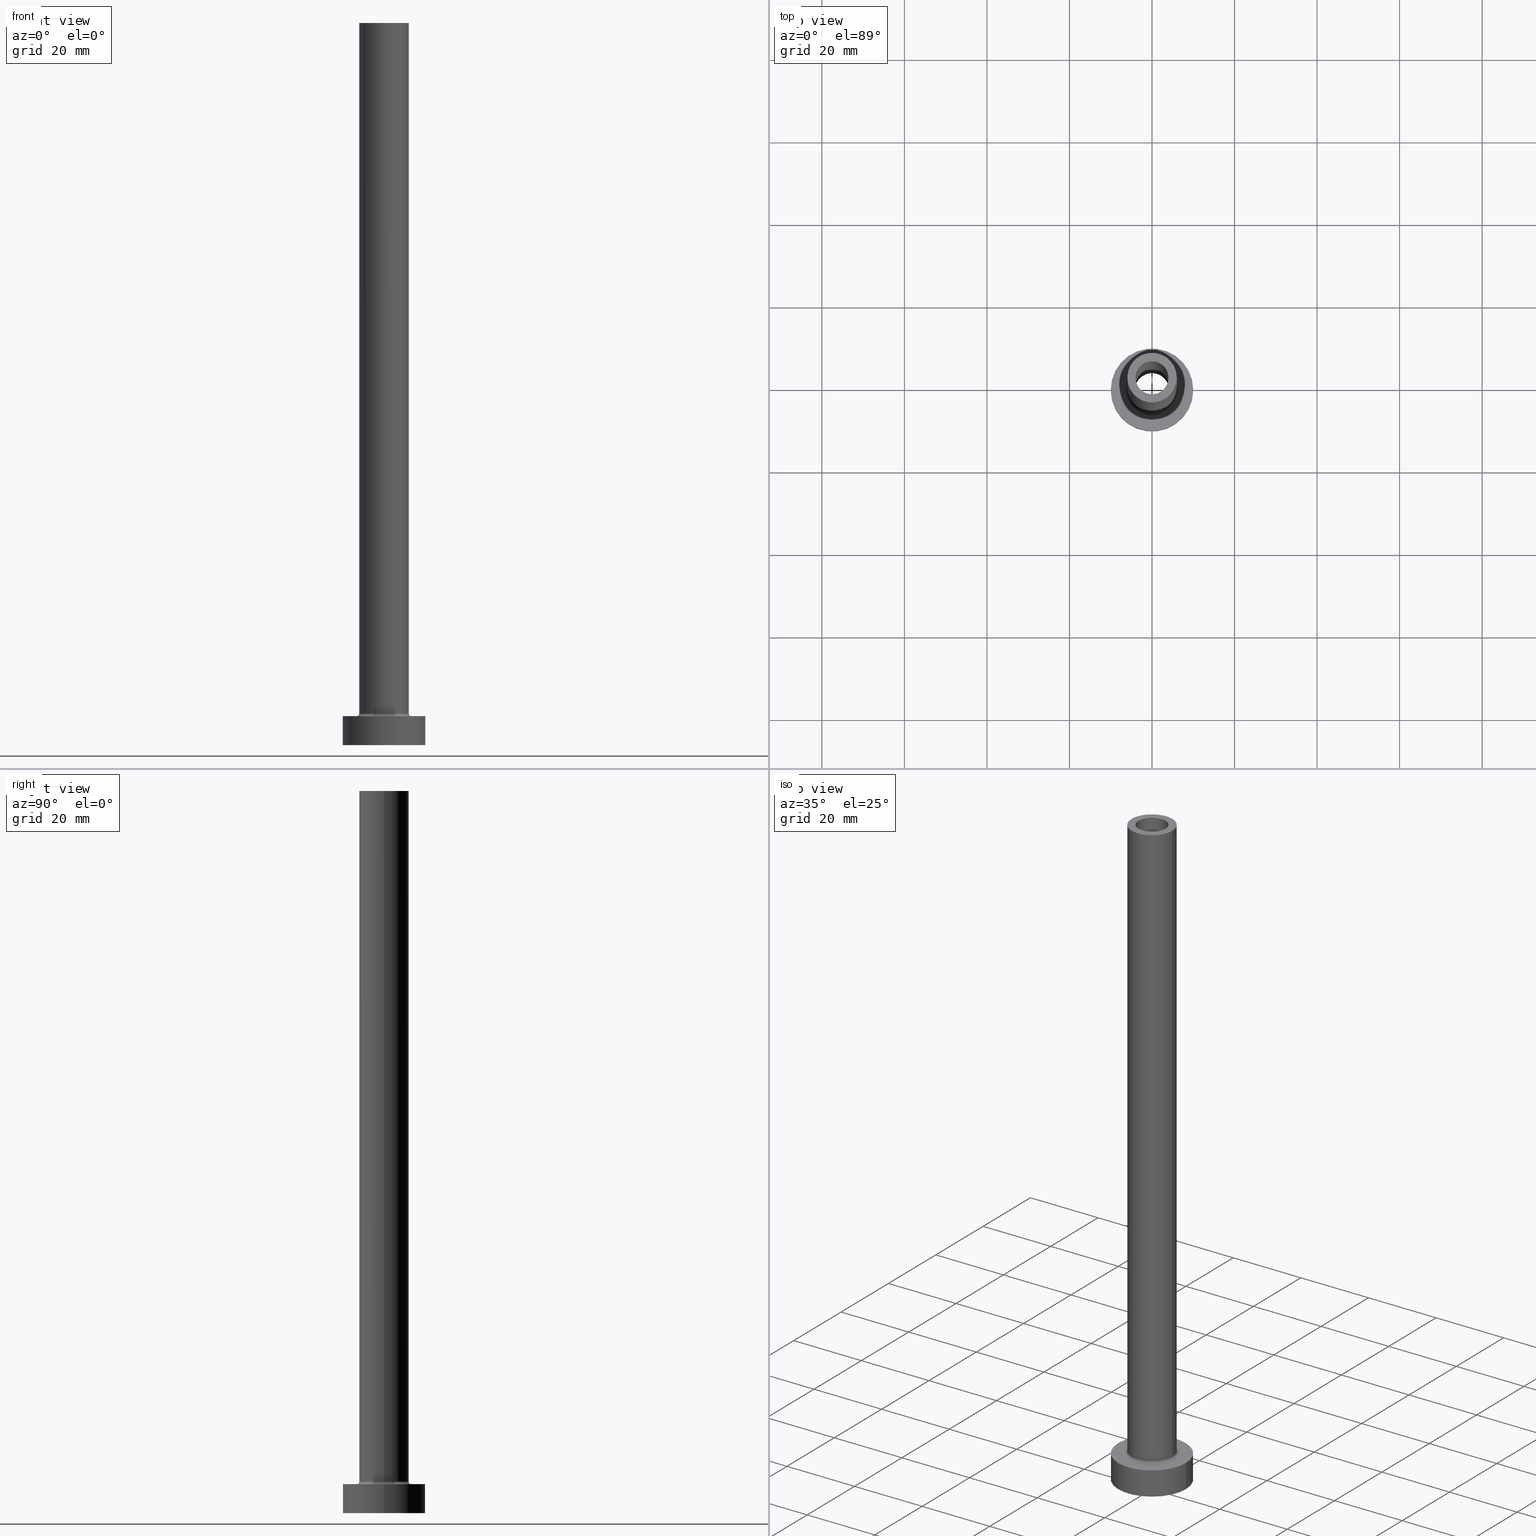
[diagram: canonical four-view strip — front | top / right | iso, engineering-drawing reading convention]
A machine part, canonical four-view strip (front | top / right | iso — engineering-drawing reading convention). The complete STEP part file that produces these views, byte-faithful:
ISO-10303-21;
HEADER;
FILE_DESCRIPTION (( 'STEP AP203' ),
    '1' );
FILE_NAME ('8c1c.STEP',
    '2023-02-13T12:46:08',
    ( '' ),
    ( '' ),
    'SwSTEP 2.0',
    'SolidWorks 2019',
    '' );
FILE_SCHEMA (( 'CONFIG_CONTROL_DESIGN' ));
ENDSEC;

DATA;
#1 = ADVANCED_FACE ( 'NONE', ( #435 ), #109, .F. ) ;
#2 = DIRECTION ( 'NONE',  ( 0.000000000000000000, 0.000000000000000000, 1.000000000000000000 ) ) ;
#3 =( LENGTH_UNIT ( ) NAMED_UNIT ( * ) SI_UNIT ( .MILLI., .METRE. ) );
#4 = EDGE_CURVE ( 'NONE', #327, #97, #182, .T. ) ;
#5 = ORIENTED_EDGE ( 'NONE', *, *, #440, .T. ) ;
#6 = VECTOR ( 'NONE', #369, 1000.000000000000000 ) ;
#7 = CIRCLE ( 'NONE', #333, 0.7000000000000000666 ) ;
#8 = DIRECTION ( 'NONE',  ( 1.000000000000000000, 0.000000000000000000, -0.000000000000000000 ) ) ;
#9 = VERTEX_POINT ( 'NONE', #152 ) ;
#10 = AXIS2_PLACEMENT_3D ( 'NONE', #14, #183, #8 ) ;
#11 = CARTESIAN_POINT ( 'NONE',  ( 6.000000000000000888, 7.347880794884119736E-16, 175.0000000000000284 ) ) ;
#12 = DIRECTION ( 'NONE',  ( 1.000000000000000000, 0.000000000000000000, 0.000000000000000000 ) ) ;
#13 = DIRECTION ( 'NONE',  ( 1.000000000000000000, 0.000000000000000000, 0.000000000000000000 ) ) ;
#14 = CARTESIAN_POINT ( 'NONE',  ( 0.000000000000000000, 0.000000000000000000, 130.0000000000000000 ) ) ;
#15 = EDGE_LOOP ( 'NONE', ( #162, #293, #197, #358 ) ) ;
#16 = LINE ( 'NONE', #305, #360 ) ;
#17 = CARTESIAN_POINT ( 'NONE',  ( 0.000000000000000000, 0.000000000000000000, 0.000000000000000000 ) ) ;
#18 = AXIS2_PLACEMENT_3D ( 'NONE', #408, #298, #370 ) ;
#19 = DIRECTION ( 'NONE',  ( 0.000000000000000000, -1.000000000000000000, 0.000000000000000000 ) ) ;
#20 = AXIS2_PLACEMENT_3D ( 'NONE', #142, #222, #297 ) ;
#21 = VERTEX_POINT ( 'NONE', #35 ) ;
#22 = ORIENTED_EDGE ( 'NONE', *, *, #291, .T. ) ;
#23 = CARTESIAN_POINT ( 'NONE',  ( 4.150000000000000355, 5.082284216461514170E-16, 0.000000000000000000 ) ) ;
#24 = PLANE ( 'NONE',  #82 ) ;
#25 = DIRECTION ( 'NONE',  ( -1.000000000000000000, 0.000000000000000000, 0.000000000000000000 ) ) ;
#26 = CC_DESIGN_SECURITY_CLASSIFICATION ( #214, ( #221 ) ) ;
#27 = COORDINATED_UNIVERSAL_TIME_OFFSET ( 1, 0, .AHEAD. ) ;
#28 = COORDINATED_UNIVERSAL_TIME_OFFSET ( 1, 0, .AHEAD. ) ;
#29 = EDGE_CURVE ( 'NONE', #204, #327, #374, .T. ) ;
#30 = UNCERTAINTY_MEASURE_WITH_UNIT (LENGTH_MEASURE( 1.000000000000000082E-05 ), #3, 'distance_accuracy_value', 'NONE');
#31 = CYLINDRICAL_SURFACE ( 'NONE', #361, 6.000000000000000888 ) ;
#32 = APPROVAL_PERSON_ORGANIZATION ( #376, #207, #164 ) ;
#33 = EDGE_LOOP ( 'NONE', ( #279, #129 ) ) ;
#34 = DIRECTION ( 'NONE',  ( -1.000000000000000000, 0.000000000000000000, 0.000000000000000000 ) ) ;
#35 = CARTESIAN_POINT ( 'NONE',  ( -4.150000000000000355, 0.000000000000000000, 0.000000000000000000 ) ) ;
#36 = ORIENTED_EDGE ( 'NONE', *, *, #335, .T. ) ;
#37 = DIRECTION ( 'NONE',  ( 0.000000000000000000, 0.000000000000000000, 1.000000000000000000 ) ) ;
#38 = CARTESIAN_POINT ( 'NONE',  ( 0.000000000000000000, 0.000000000000000000, 7.000000000000000000 ) ) ;
#39 = EDGE_CURVE ( 'NONE', #127, #151, #7, .T. ) ;
#40 = CYLINDRICAL_SURFACE ( 'NONE', #323, 10.00000000000000000 ) ;
#41 = DIRECTION ( 'NONE',  ( 0.000000000000000000, 0.000000000000000000, 1.000000000000000000 ) ) ;
#42 = CIRCLE ( 'NONE', #289, 10.00000000000000000 ) ;
#43 = EDGE_LOOP ( 'NONE', ( #252, #175, #381, #58 ) ) ;
#44 = ORIENTED_EDGE ( 'NONE', *, *, #404, .F. ) ;
#45 = EDGE_CURVE ( 'NONE', #21, #243, #126, .T. ) ;
#46 = DIRECTION ( 'NONE',  ( 0.000000000000000000, 0.000000000000000000, 1.000000000000000000 ) ) ;
#47 = AXIS2_PLACEMENT_3D ( 'NONE', #192, #446, #125 ) ;
#48 = DIRECTION ( 'NONE',  ( 1.000000000000000000, 0.000000000000000000, 0.000000000000000000 ) ) ;
#49 = CARTESIAN_POINT ( 'NONE',  ( -4.150000000000000355, 0.000000000000000000, 141.7379725676967155 ) ) ;
#50 = CARTESIAN_POINT ( 'NONE',  ( 6.000000000000000888, 7.347880794884119736E-16, 175.0000000000000284 ) ) ;
#51 = VERTEX_POINT ( 'NONE', #185 ) ;
#52 = EDGE_CURVE ( 'NONE', #348, #226, #326, .T. ) ;
#53 = CARTESIAN_POINT ( 'NONE',  ( 0.000000000000000000, 0.000000000000000000, 175.0000000000000284 ) ) ;
#54 = DIRECTION ( 'NONE',  ( 1.000000000000000000, 0.000000000000000000, 0.000000000000000000 ) ) ;
#55 = COORDINATED_UNIVERSAL_TIME_OFFSET ( 1, 0, .AHEAD. ) ;
#56 = ORGANIZATION ( 'NEUR�EN�', 'NEUR�EN�', '' ) ;
#57 = CARTESIAN_POINT ( 'NONE',  ( 0.000000000000000000, 0.000000000000000000, 175.0000000000000284 ) ) ;
#58 = ORIENTED_EDGE ( 'NONE', *, *, #291, .F. ) ;
#59 = APPLICATION_PROTOCOL_DEFINITION ( 'international standard', 'config_control_design', 1994, #447 ) ;
#60 = ORIENTED_EDGE ( 'NONE', *, *, #68, .F. ) ;
#61 = PERSON_AND_ORGANIZATION ( #277, #56 ) ;
#62 = EDGE_LOOP ( 'NONE', ( #439, #5 ) ) ;
#63 = ORIENTED_EDGE ( 'NONE', *, *, #355, .F. ) ;
#64 = DIRECTION ( 'NONE',  ( 0.000000000000000000, 0.000000000000000000, -1.000000000000000000 ) ) ;
#65 = CIRCLE ( 'NONE', #372, 6.000000000000000888 ) ;
#66 = DATE_AND_TIME ( #276, #133 ) ;
#67 = ORIENTED_EDGE ( 'NONE', *, *, #171, .T. ) ;
#68 = EDGE_CURVE ( 'NONE', #127, #51, #385, .T. ) ;
#69 = PERSON_AND_ORGANIZATION_ROLE ( 'creator' ) ;
#70 = CIRCLE ( 'NONE', #397, 6.000000000000000888 ) ;
#71 = LOCAL_TIME ( 13, 46, 8.000000000000000000, #27 ) ;
#72 = DIRECTION ( 'NONE',  ( 0.000000000000000000, 0.000000000000000000, 1.000000000000000000 ) ) ;
#73 = CIRCLE ( 'NONE', #362, 4.000000000000000000 ) ;
#74 = DIRECTION ( 'NONE',  ( 1.000000000000000000, 0.000000000000000000, 0.000000000000000000 ) ) ;
#75 = ADVANCED_FACE ( 'NONE', ( #102, #394 ), #24, .T. ) ;
#76 = ORIENTED_EDGE ( 'NONE', *, *, #440, .F. ) ;
#77 = EDGE_LOOP ( 'NONE', ( #60, #401, #349, #96 ) ) ;
#78 = DIRECTION ( 'NONE',  ( 1.000000000000000000, 0.000000000000000000, 0.000000000000000000 ) ) ;
#79 = EDGE_LOOP ( 'NONE', ( #220, #444, #216, #146 ) ) ;
#80 = TOROIDAL_SURFACE ( 'NONE', #47, 6.700000000000001066, 0.6999999999999999556 ) ;
#81 = DIRECTION ( 'NONE',  ( 1.000000000000000000, 0.000000000000000000, 0.000000000000000000 ) ) ;
#82 = AXIS2_PLACEMENT_3D ( 'NONE', #168, #320, #314 ) ;
#83 = CC_DESIGN_DATE_AND_TIME_ASSIGNMENT ( #106, #454, ( #214 ) ) ;
#84 = ORIENTED_EDGE ( 'NONE', *, *, #52, .F. ) ;
#85 = ORIENTED_EDGE ( 'NONE', *, *, #39, .F. ) ;
#86 = CARTESIAN_POINT ( 'NONE',  ( 4.150000000000000355, 5.082284216461514170E-16, 141.7379725676967155 ) ) ;
#87 = LINE ( 'NONE', #91, #122 ) ;
#88 = EDGE_CURVE ( 'NONE', #327, #204, #73, .T. ) ;
#89 = AXIS2_PLACEMENT_3D ( 'NONE', #149, #46, #159 ) ;
#90 = FACE_OUTER_BOUND ( 'NONE', #173, .T. ) ;
#91 = CARTESIAN_POINT ( 'NONE',  ( -10.00000000000000000, 0.000000000000000000, 7.000000000000000000 ) ) ;
#92 = PERSON_AND_ORGANIZATION ( #277, #56 ) ;
#93 = CARTESIAN_POINT ( 'NONE',  ( 10.00000000000000000, 1.224646799147353256E-15, 7.000000000000000000 ) ) ;
#94 = EDGE_LOOP ( 'NONE', ( #433, #441 ) ) ;
#95 = COORDINATED_UNIVERSAL_TIME_OFFSET ( 1, 0, .AHEAD. ) ;
#96 = ORIENTED_EDGE ( 'NONE', *, *, #212, .F. ) ;
#97 = VERTEX_POINT ( 'NONE', #352 ) ;
#98 = AXIS2_PLACEMENT_3D ( 'NONE', #393, #318, #136 ) ;
#99 = CC_DESIGN_APPROVAL ( #207, ( #221 ) ) ;
#100 = ORIENTED_EDGE ( 'NONE', *, *, #128, .F. ) ;
#101 = CARTESIAN_POINT ( 'NONE',  ( 0.000000000000000000, 0.000000000000000000, 175.0000000000000284 ) ) ;
#102 = FACE_BOUND ( 'NONE', #202, .T. ) ;
#103 = ADVANCED_FACE ( 'NONE', ( #134 ), #280, .T. ) ;
#104 = VECTOR ( 'NONE', #375, 1000.000000000000000 ) ;
#105 = DIRECTION ( 'NONE',  ( -0.000000000000000000, -0.000000000000000000, -1.000000000000000000 ) ) ;
#106 = DATE_AND_TIME ( #315, #71 ) ;
#107 = EDGE_LOOP ( 'NONE', ( #167, #351 ) ) ;
#108 = APPROVAL_DATE_TIME ( #66, #207 ) ;
#109 = CYLINDRICAL_SURFACE ( 'NONE', #223, 4.150000000000000355 ) ;
#110 = EDGE_LOOP ( 'NONE', ( #270, #63 ) ) ;
#111 = CIRCLE ( 'NONE', #89, 10.00000000000000000 ) ;
#112 =( NAMED_UNIT ( * ) SI_UNIT ( $, .STERADIAN. ) SOLID_ANGLE_UNIT ( ) );
#113 = ADVANCED_FACE ( 'NONE', ( #172 ), #356, .F. ) ;
#114 = DIRECTION ( 'NONE',  ( 1.000000000000000000, 0.000000000000000000, 0.000000000000000000 ) ) ;
#115 = EDGE_CURVE ( 'NONE', #9, #151, #460, .T. ) ;
#116 = DIRECTION ( 'NONE',  ( 0.000000000000000000, 0.000000000000000000, -1.000000000000000000 ) ) ;
#117 = TOROIDAL_SURFACE ( 'NONE', #330, 6.700000000000001066, 0.6999999999999999556 ) ;
#118 = DIRECTION ( 'NONE',  ( 1.000000000000000000, 0.000000000000000000, -0.000000000000000000 ) ) ;
#119 = CARTESIAN_POINT ( 'NONE',  ( -4.000000000000000000, 0.000000000000000000, 130.0000000000000000 ) ) ;
#120 = APPROVAL_ROLE ( '' ) ;
#121 = ADVANCED_FACE ( 'NONE', ( #364 ), #40, .T. ) ;
#122 = VECTOR ( 'NONE', #229, 1000.000000000000000 ) ;
#123 = CARTESIAN_POINT ( 'NONE',  ( 0.000000000000000000, 0.000000000000000000, 0.000000000000000000 ) ) ;
#124 = ORIENTED_EDGE ( 'NONE', *, *, #68, .T. ) ;
#125 = DIRECTION ( 'NONE',  ( 1.000000000000000000, 0.000000000000000000, 0.000000000000000000 ) ) ;
#126 = CIRCLE ( 'NONE', #253, 4.150000000000000355 ) ;
#127 = VERTEX_POINT ( 'NONE', #329 ) ;
#128 = EDGE_CURVE ( 'NONE', #204, #402, #16, .T. ) ;
#129 = ORIENTED_EDGE ( 'NONE', *, *, #157, .T. ) ;
#130 = ORIENTED_EDGE ( 'NONE', *, *, #328, .F. ) ;
#131 = COORDINATED_UNIVERSAL_TIME_OFFSET ( 1, 0, .AHEAD. ) ;
#132 = ORIENTED_EDGE ( 'NONE', *, *, #312, .F. ) ;
#133 = LOCAL_TIME ( 13, 46, 8.000000000000000000, #131 ) ;
#134 = FACE_OUTER_BOUND ( 'NONE', #245, .T. ) ;
#135 = FACE_OUTER_BOUND ( 'NONE', #418, .T. ) ;
#136 = DIRECTION ( 'NONE',  ( -1.000000000000000000, 0.000000000000000000, 0.000000000000000000 ) ) ;
#137 = CARTESIAN_POINT ( 'NONE',  ( 4.150000000000000355, 5.082284216461514170E-16, 130.0000000000000000 ) ) ;
#138 = AXIS2_PLACEMENT_3D ( 'NONE', #57, #380, #196 ) ;
#139 = PERSON_AND_ORGANIZATION_ROLE ( 'design_supplier' ) ;
#140 = VERTEX_POINT ( 'NONE', #11 ) ;
#141 = ADVANCED_FACE ( 'NONE', ( #419 ), #184, .T. ) ;
#142 = CARTESIAN_POINT ( 'NONE',  ( 0.000000000000000000, 0.000000000000000000, 7.000000000000000000 ) ) ;
#143 =( NAMED_UNIT ( * ) PLANE_ANGLE_UNIT ( ) SI_UNIT ( $, .RADIAN. ) );
#144 = VECTOR ( 'NONE', #371, 1000.000000000000000 ) ;
#145 = AXIS2_PLACEMENT_3D ( 'NONE', #190, #236, #273 ) ;
#146 = ORIENTED_EDGE ( 'NONE', *, *, #180, .F. ) ;
#147 = ORIENTED_EDGE ( 'NONE', *, *, #115, .T. ) ;
#148 = CC_DESIGN_PERSON_AND_ORGANIZATION_ASSIGNMENT ( #429, #69, ( #221 ) ) ;
#149 = CARTESIAN_POINT ( 'NONE',  ( 0.000000000000000000, 0.000000000000000000, 7.000000000000000000 ) ) ;
#150 = DIRECTION ( 'NONE',  ( 0.000000000000000000, 0.000000000000000000, -1.000000000000000000 ) ) ;
#151 = VERTEX_POINT ( 'NONE', #299 ) ;
#152 = CARTESIAN_POINT ( 'NONE',  ( 6.700000000000001066, 0.000000000000000000, 7.000000000000006217 ) ) ;
#153 = FACE_BOUND ( 'NONE', #94, .T. ) ;
#154 = MECHANICAL_CONTEXT ( 'NONE', #203, 'mechanical' ) ;
#155 = CARTESIAN_POINT ( 'NONE',  ( 0.000000000000000000, 0.000000000000000000, 7.700000000000012612 ) ) ;
#156 = DIRECTION ( 'NONE',  ( -0.000000000000000000, -0.000000000000000000, -1.000000000000000000 ) ) ;
#157 = EDGE_CURVE ( 'NONE', #140, #288, #70, .T. ) ;
#158 = DIRECTION ( 'NONE',  ( 0.000000000000000000, 0.000000000000000000, 1.000000000000000000 ) ) ;
#159 = DIRECTION ( 'NONE',  ( 1.000000000000000000, 0.000000000000000000, 0.000000000000000000 ) ) ;
#160 = CARTESIAN_POINT ( 'NONE',  ( 0.000000000000000000, 0.000000000000000000, 141.7379725676967155 ) ) ;
#161 = AXIS2_PLACEMENT_3D ( 'NONE', #17, #158, #237 ) ;
#162 = ORIENTED_EDGE ( 'NONE', *, *, #432, .F. ) ;
#163 = LINE ( 'NONE', #49, #144 ) ;
#164 = APPROVAL_ROLE ( '' ) ;
#165 = EDGE_CURVE ( 'NONE', #243, #21, #413, .T. ) ;
#166 = PERSON_AND_ORGANIZATION_ROLE ( 'creator' ) ;
#167 = ORIENTED_EDGE ( 'NONE', *, *, #29, .F. ) ;
#168 = CARTESIAN_POINT ( 'NONE',  ( 0.000000000000000000, 0.000000000000000000, 7.000000000000000000 ) ) ;
#169 = SECURITY_CLASSIFICATION_LEVEL ( 'unclassified' ) ;
#170 = CIRCLE ( 'NONE', #257, 4.000000000000000000 ) ;
#171 = EDGE_CURVE ( 'NONE', #226, #274, #87, .T. ) ;
#172 = FACE_OUTER_BOUND ( 'NONE', #272, .T. ) ;
#173 = EDGE_LOOP ( 'NONE', ( #322, #132 ) ) ;
#174 = DATE_AND_TIME ( #395, #250 ) ;
#175 = ORIENTED_EDGE ( 'NONE', *, *, #328, .T. ) ;
#176 = CIRCLE ( 'NONE', #266, 4.150000000000000355 ) ;
#177 = DESIGN_CONTEXT ( 'detailed design', #447, 'design' ) ;
#178 = DIRECTION ( 'NONE',  ( 0.000000000000000000, 0.000000000000000000, 1.000000000000000000 ) ) ;
#179 =( GEOMETRIC_REPRESENTATION_CONTEXT ( 3 ) GLOBAL_UNCERTAINTY_ASSIGNED_CONTEXT ( ( #30 ) ) GLOBAL_UNIT_ASSIGNED_CONTEXT ( ( #3, #143, #112 ) ) REPRESENTATION_CONTEXT ( 'NONE', 'WORKASPACE' ) );
#180 = EDGE_CURVE ( 'NONE', #379, #21, #163, .T. ) ;
#181 = DIRECTION ( 'NONE',  ( -0.000000000000000000, -0.000000000000000000, -1.000000000000000000 ) ) ;
#182 = LINE ( 'NONE', #396, #251 ) ;
#183 = DIRECTION ( 'NONE',  ( 0.000000000000000000, 0.000000000000000000, 1.000000000000000000 ) ) ;
#184 = CYLINDRICAL_SURFACE ( 'NONE', #451, 10.00000000000000000 ) ;
#185 = CARTESIAN_POINT ( 'NONE',  ( 6.000000000000000888, 7.347880794884119736E-16, 7.700000000000012612 ) ) ;
#186 = APPROVAL_PERSON_ORGANIZATION ( #359, #383, #357 ) ;
#187 = DIRECTION ( 'NONE',  ( 0.000000000000000000, 0.000000000000000000, 1.000000000000000000 ) ) ;
#188 = CC_DESIGN_PERSON_AND_ORGANIZATION_ASSIGNMENT ( #427, #211, ( #214 ) ) ;
#189 = AXIS2_PLACEMENT_3D ( 'NONE', #101, #244, #25 ) ;
#190 = CARTESIAN_POINT ( 'NONE',  ( 0.000000000000000000, 0.000000000000000000, 130.0000000000000000 ) ) ;
#191 = FACE_BOUND ( 'NONE', #62, .T. ) ;
#192 = CARTESIAN_POINT ( 'NONE',  ( 0.000000000000000000, 0.000000000000000000, 7.700000000000012612 ) ) ;
#193 = DIRECTION ( 'NONE',  ( -1.000000000000000000, 0.000000000000000000, 0.000000000000000000 ) ) ;
#194 = EDGE_CURVE ( 'NONE', #379, #234, #353, .T. ) ;
#195 = AXIS2_PLACEMENT_3D ( 'NONE', #436, #377, #118 ) ;
#196 = DIRECTION ( 'NONE',  ( -1.000000000000000000, 0.000000000000000000, 0.000000000000000000 ) ) ;
#197 = ORIENTED_EDGE ( 'NONE', *, *, #180, .T. ) ;
#198 = ORIENTED_EDGE ( 'NONE', *, *, #411, .T. ) ;
#199 = PERSON_AND_ORGANIZATION ( #277, #56 ) ;
#200 = ORIENTED_EDGE ( 'NONE', *, *, #365, .T. ) ;
#201 = CYLINDRICAL_SURFACE ( 'NONE', #138, 4.000000000000000000 ) ;
#202 = EDGE_LOOP ( 'NONE', ( #147, #384 ) ) ;
#203 = APPLICATION_CONTEXT ( 'configuration controlled 3d designs of mechanical parts and assemblies' ) ;
#204 = VERTEX_POINT ( 'NONE', #443 ) ;
#205 = DIRECTION ( 'NONE',  ( 0.000000000000000000, 0.000000000000000000, 1.000000000000000000 ) ) ;
#206 = AXIS2_PLACEMENT_3D ( 'NONE', #337, #261, #54 ) ;
#207 = APPROVAL ( #311, 'NEUR�EN�' ) ;
#208 = AXIS2_PLACEMENT_3D ( 'NONE', #334, #41, #258 ) ;
#209 = CARTESIAN_POINT ( 'NONE',  ( 0.000000000000000000, 0.000000000000000000, 175.0000000000000284 ) ) ;
#210 = CARTESIAN_POINT ( 'NONE',  ( 0.000000000000000000, 0.000000000000000000, 7.000000000000000000 ) ) ;
#211 = PERSON_AND_ORGANIZATION_ROLE ( 'classification_officer' ) ;
#212 = EDGE_CURVE ( 'NONE', #51, #9, #453, .T. ) ;
#213 = CARTESIAN_POINT ( 'NONE',  ( 0.000000000000000000, 0.000000000000000000, 175.0000000000000284 ) ) ;
#214 = SECURITY_CLASSIFICATION ( '', '', #169 ) ;
#215 = DIRECTION ( 'NONE',  ( -1.000000000000000000, 0.000000000000000000, 0.000000000000000000 ) ) ;
#216 = ORIENTED_EDGE ( 'NONE', *, *, #165, .T. ) ;
#217 = ADVANCED_FACE ( 'NONE', ( #265 ), #80, .F. ) ;
#218 = DIRECTION ( 'NONE',  ( -0.000000000000000000, -0.000000000000000000, -1.000000000000000000 ) ) ;
#219 = DIRECTION ( 'NONE',  ( -1.000000000000000000, 0.000000000000000000, 0.000000000000000000 ) ) ;
#220 = ORIENTED_EDGE ( 'NONE', *, *, #194, .T. ) ;
#221 = PRODUCT_DEFINITION_FORMATION_WITH_SPECIFIED_SOURCE ( 'LIBOVOLN�', '', #426, .NOT_KNOWN. ) ;
#222 = DIRECTION ( 'NONE',  ( 0.000000000000000000, 0.000000000000000000, 1.000000000000000000 ) ) ;
#223 = AXIS2_PLACEMENT_3D ( 'NONE', #332, #116, #215 ) ;
#224 = DIRECTION ( 'NONE',  ( 0.000000000000000000, 0.000000000000000000, 1.000000000000000000 ) ) ;
#225 = LINE ( 'NONE', #50, #405 ) ;
#226 = VERTEX_POINT ( 'NONE', #414 ) ;
#227 = ADVANCED_FACE ( 'NONE', ( #271 ), #343, .F. ) ;
#228 = CARTESIAN_POINT ( 'NONE',  ( 0.000000000000000000, 0.000000000000000000, 130.0000000000000000 ) ) ;
#229 = DIRECTION ( 'NONE',  ( -0.000000000000000000, -0.000000000000000000, -1.000000000000000000 ) ) ;
#230 = CALENDAR_DATE ( 2023, 13, 2 ) ;
#231 = CC_DESIGN_APPROVAL ( #383, ( #214 ) ) ;
#232 = CARTESIAN_POINT ( 'NONE',  ( 0.000000000000000000, 0.000000000000000000, 130.0000000000000000 ) ) ;
#233 = APPROVAL_DATE_TIME ( #373, #281 ) ;
#234 = VERTEX_POINT ( 'NONE', #137 ) ;
#235 = CC_DESIGN_PERSON_AND_ORGANIZATION_ASSIGNMENT ( #267, #416, ( #426 ) ) ;
#236 = DIRECTION ( 'NONE',  ( 0.000000000000000000, 0.000000000000000000, 1.000000000000000000 ) ) ;
#237 = DIRECTION ( 'NONE',  ( 1.000000000000000000, 0.000000000000000000, 0.000000000000000000 ) ) ;
#238 = ORIENTED_EDGE ( 'NONE', *, *, #88, .T. ) ;
#239 = APPROVAL_PERSON_ORGANIZATION ( #92, #281, #120 ) ;
#240 = PLANE ( 'NONE',  #345 ) ;
#241 = APPLICATION_PROTOCOL_DEFINITION ( 'international standard', 'config_control_design', 1994, #203 ) ;
#242 = ADVANCED_FACE ( 'NONE', ( #313 ), #201, .F. ) ;
#243 = VERTEX_POINT ( 'NONE', #23 ) ;
#244 = DIRECTION ( 'NONE',  ( -0.000000000000000000, -0.000000000000000000, -1.000000000000000000 ) ) ;
#245 = EDGE_LOOP ( 'NONE', ( #130, #430, #22, #124 ) ) ;
#246 = FACE_OUTER_BOUND ( 'NONE', #43, .T. ) ;
#247 = CARTESIAN_POINT ( 'NONE',  ( 0.000000000000000000, 0.000000000000000000, 0.000000000000000000 ) ) ;
#248 = CC_DESIGN_DATE_AND_TIME_ASSIGNMENT ( #341, #302, ( #363 ) ) ;
#249 = CARTESIAN_POINT ( 'NONE',  ( 0.000000000000000000, 0.000000000000000000, 7.700000000000012612 ) ) ;
#250 = LOCAL_TIME ( 13, 46, 8.000000000000000000, #28 ) ;
#251 = VECTOR ( 'NONE', #431, 1000.000000000000000 ) ;
#252 = ORIENTED_EDGE ( 'NONE', *, *, #157, .F. ) ;
#253 = AXIS2_PLACEMENT_3D ( 'NONE', #407, #218, #114 ) ;
#254 = DIRECTION ( 'NONE',  ( -0.000000000000000000, -0.000000000000000000, -1.000000000000000000 ) ) ;
#255 = CARTESIAN_POINT ( 'NONE',  ( 4.000000000000000000, 4.898587196589412829E-16, 175.0000000000000284 ) ) ;
#256 = AXIS2_PLACEMENT_3D ( 'NONE', #210, #105, #400 ) ;
#257 = AXIS2_PLACEMENT_3D ( 'NONE', #228, #339, #12 ) ;
#258 = DIRECTION ( 'NONE',  ( 1.000000000000000000, 0.000000000000000000, 0.000000000000000000 ) ) ;
#259 = CARTESIAN_POINT ( 'NONE',  ( 10.00000000000000000, 1.224646799147353256E-15, 0.000000000000000000 ) ) ;
#260 = DIRECTION ( 'NONE',  ( 1.000000000000000000, 0.000000000000000000, -0.000000000000000000 ) ) ;
#261 = DIRECTION ( 'NONE',  ( 0.000000000000000000, 0.000000000000000000, 1.000000000000000000 ) ) ;
#262 = DIRECTION ( 'NONE',  ( 0.000000000000000000, 0.000000000000000000, 1.000000000000000000 ) ) ;
#263 = ORIENTED_EDGE ( 'NONE', *, *, #171, .F. ) ;
#264 = DIRECTION ( 'NONE',  ( 1.000000000000000000, 0.000000000000000000, 0.000000000000000000 ) ) ;
#265 = FACE_OUTER_BOUND ( 'NONE', #77, .T. ) ;
#266 = AXIS2_PLACEMENT_3D ( 'NONE', #232, #224, #48 ) ;
#267 = PERSON_AND_ORGANIZATION ( #277, #56 ) ;
#268 = CC_DESIGN_PERSON_AND_ORGANIZATION_ASSIGNMENT ( #199, #166, ( #363 ) ) ;
#269 = CARTESIAN_POINT ( 'NONE',  ( 10.00000000000000000, 1.224646799147353256E-15, 7.000000000000000000 ) ) ;
#270 = ORIENTED_EDGE ( 'NONE', *, *, #194, .F. ) ;
#271 = FACE_OUTER_BOUND ( 'NONE', #15, .T. ) ;
#272 = EDGE_LOOP ( 'NONE', ( #308, #238, #287, #76 ) ) ;
#273 = DIRECTION ( 'NONE',  ( 1.000000000000000000, 0.000000000000000000, 0.000000000000000000 ) ) ;
#274 = VERTEX_POINT ( 'NONE', #347 ) ;
#275 = EDGE_LOOP ( 'NONE', ( #420, #366, #456, #100 ) ) ;
#276 = CALENDAR_DATE ( 2023, 13, 2 ) ;
#277 = PERSON ( 'NEUR�EN�', 'NEUR�EN�', 'NEUR�EN�', ('NEUR�EN�'), ('NEUR�EN�'), ('NEUR�EN�') ) ;
#278 = LOCAL_TIME ( 13, 46, 8.000000000000000000, #95 ) ;
#279 = ORIENTED_EDGE ( 'NONE', *, *, #421, .T. ) ;
#280 = CYLINDRICAL_SURFACE ( 'NONE', #189, 6.000000000000000888 ) ;
#281 = APPROVAL ( #300, 'NEUR�EN�' ) ;
#282 = CARTESIAN_POINT ( 'NONE',  ( -6.000000000000000888, 0.000000000000000000, 175.0000000000000284 ) ) ;
#283 = SHAPE_DEFINITION_REPRESENTATION ( #458, #324 ) ;
#284 = CIRCLE ( 'NONE', #18, 6.700000000000001066 ) ;
#285 = CC_DESIGN_PERSON_AND_ORGANIZATION_ASSIGNMENT ( #61, #139, ( #221 ) ) ;
#286 = AXIS2_PLACEMENT_3D ( 'NONE', #249, #72, #74 ) ;
#287 = ORIENTED_EDGE ( 'NONE', *, *, #128, .T. ) ;
#288 = VERTEX_POINT ( 'NONE', #317 ) ;
#289 = AXIS2_PLACEMENT_3D ( 'NONE', #123, #187, #81 ) ;
#290 = EDGE_LOOP ( 'NONE', ( #461, #310, #67, #36 ) ) ;
#291 = EDGE_CURVE ( 'NONE', #288, #127, #455, .T. ) ;
#292 = CARTESIAN_POINT ( 'NONE',  ( -6.700000000000001066, 8.205133554287267548E-16, 7.700000000000012612 ) ) ;
#293 = ORIENTED_EDGE ( 'NONE', *, *, #355, .T. ) ;
#294 = ADVANCED_FACE ( 'NONE', ( #135 ), #117, .F. ) ;
#295 = CARTESIAN_POINT ( 'NONE',  ( 0.000000000000000000, 0.000000000000000000, 7.000000000000000000 ) ) ;
#296 = CIRCLE ( 'NONE', #206, 6.000000000000000888 ) ;
#297 = DIRECTION ( 'NONE',  ( 1.000000000000000000, 0.000000000000000000, 0.000000000000000000 ) ) ;
#298 = DIRECTION ( 'NONE',  ( -0.000000000000000000, -0.000000000000000000, -1.000000000000000000 ) ) ;
#299 = CARTESIAN_POINT ( 'NONE',  ( -6.700000000000001066, 8.205133554287267548E-16, 7.000000000000006217 ) ) ;
#300 = APPROVAL_STATUS ( 'not_yet_approved' ) ;
#301 = DIRECTION ( 'NONE',  ( 0.000000000000000000, 0.000000000000000000, 1.000000000000000000 ) ) ;
#302 = DATE_TIME_ROLE ( 'creation_date' ) ;
#303 = ADVANCED_FACE ( 'NONE', ( #246 ), #31, .T. ) ;
#304 = FACE_BOUND ( 'NONE', #107, .T. ) ;
#305 = CARTESIAN_POINT ( 'NONE',  ( -4.000000000000000000, 0.000000000000000000, 175.0000000000000284 ) ) ;
#306 = CIRCLE ( 'NONE', #316, 4.000000000000000000 ) ;
#307 = DIRECTION ( 'NONE',  ( 1.000000000000000000, 0.000000000000000000, 0.000000000000000000 ) ) ;
#308 = ORIENTED_EDGE ( 'NONE', *, *, #4, .F. ) ;
#309 = ORIENTED_EDGE ( 'NONE', *, *, #52, .T. ) ;
#310 = ORIENTED_EDGE ( 'NONE', *, *, #411, .F. ) ;
#311 = APPROVAL_STATUS ( 'not_yet_approved' ) ;
#312 = EDGE_CURVE ( 'NONE', #390, #274, #425, .T. ) ;
#313 = FACE_OUTER_BOUND ( 'NONE', #275, .T. ) ;
#314 = DIRECTION ( 'NONE',  ( 1.000000000000000000, 0.000000000000000000, -0.000000000000000000 ) ) ;
#315 = CALENDAR_DATE ( 2023, 13, 2 ) ;
#316 = AXIS2_PLACEMENT_3D ( 'NONE', #399, #37, #307 ) ;
#317 = CARTESIAN_POINT ( 'NONE',  ( -6.000000000000000888, 0.000000000000000000, 175.0000000000000284 ) ) ;
#318 = DIRECTION ( 'NONE',  ( 0.000000000000000000, 0.000000000000000000, -1.000000000000000000 ) ) ;
#319 = CARTESIAN_POINT ( 'NONE',  ( 0.000000000000000000, 0.000000000000000000, 175.0000000000000284 ) ) ;
#320 = DIRECTION ( 'NONE',  ( 0.000000000000000000, 0.000000000000000000, 1.000000000000000000 ) ) ;
#321 = EDGE_CURVE ( 'NONE', #402, #97, #306, .T. ) ;
#322 = ORIENTED_EDGE ( 'NONE', *, *, #335, .F. ) ;
#323 = AXIS2_PLACEMENT_3D ( 'NONE', #38, #254, #219 ) ;
#324 = ADVANCED_BREP_SHAPE_REPRESENTATION ( '8c1c', ( #389, #161 ), #179 ) ;
#325 = CC_DESIGN_APPROVAL ( #281, ( #363 ) ) ;
#326 = CIRCLE ( 'NONE', #20, 10.00000000000000000 ) ;
#327 = VERTEX_POINT ( 'NONE', #255 ) ;
#328 = EDGE_CURVE ( 'NONE', #140, #51, #225, .T. ) ;
#329 = CARTESIAN_POINT ( 'NONE',  ( -6.000000000000000888, 0.000000000000000000, 7.700000000000012612 ) ) ;
#330 = AXIS2_PLACEMENT_3D ( 'NONE', #403, #178, #78 ) ;
#331 = DIRECTION ( 'NONE',  ( 1.000000000000000000, 0.000000000000000000, 0.000000000000000000 ) ) ;
#332 = CARTESIAN_POINT ( 'NONE',  ( 0.000000000000000000, 0.000000000000000000, 141.7379725676967155 ) ) ;
#333 = AXIS2_PLACEMENT_3D ( 'NONE', #292, #368, #434 ) ;
#334 = CARTESIAN_POINT ( 'NONE',  ( 0.000000000000000000, 0.000000000000000000, 175.0000000000000284 ) ) ;
#335 = EDGE_CURVE ( 'NONE', #274, #390, #42, .T. ) ;
#336 = CARTESIAN_POINT ( 'NONE',  ( -4.150000000000000355, 0.000000000000000000, 130.0000000000000000 ) ) ;
#337 = CARTESIAN_POINT ( 'NONE',  ( 0.000000000000000000, 0.000000000000000000, 175.0000000000000284 ) ) ;
#338 = LOCAL_TIME ( 13, 46, 8.000000000000000000, #55 ) ;
#339 = DIRECTION ( 'NONE',  ( 0.000000000000000000, 0.000000000000000000, 1.000000000000000000 ) ) ;
#340 = CARTESIAN_POINT ( 'NONE',  ( 6.700000000000001066, 0.000000000000000000, 7.700000000000012612 ) ) ;
#341 = DATE_AND_TIME ( #449, #278 ) ;
#342 = FACE_OUTER_BOUND ( 'NONE', #110, .T. ) ;
#343 = CYLINDRICAL_SURFACE ( 'NONE', #398, 4.150000000000000355 ) ;
#344 = CARTESIAN_POINT ( 'NONE',  ( 0.000000000000000000, 0.000000000000000000, 0.000000000000000000 ) ) ;
#345 = AXIS2_PLACEMENT_3D ( 'NONE', #319, #386, #260 ) ;
#346 = EDGE_LOOP ( 'NONE', ( #84, #200, #450, #263 ) ) ;
#347 = CARTESIAN_POINT ( 'NONE',  ( -10.00000000000000000, 0.000000000000000000, 0.000000000000000000 ) ) ;
#348 = VERTEX_POINT ( 'NONE', #269 ) ;
#349 = ORIENTED_EDGE ( 'NONE', *, *, #115, .F. ) ;
#350 = ADVANCED_FACE ( 'NONE', ( #153, #90 ), #438, .F. ) ;
#351 = ORIENTED_EDGE ( 'NONE', *, *, #88, .F. ) ;
#352 = CARTESIAN_POINT ( 'NONE',  ( 4.000000000000000000, 4.898587196589412829E-16, 130.0000000000000000 ) ) ;
#353 = CIRCLE ( 'NONE', #145, 4.150000000000000355 ) ;
#354 = DIRECTION ( 'NONE',  ( -0.000000000000000000, -0.000000000000000000, -1.000000000000000000 ) ) ;
#355 = EDGE_CURVE ( 'NONE', #234, #379, #176, .T. ) ;
#356 = CYLINDRICAL_SURFACE ( 'NONE', #98, 4.000000000000000000 ) ;
#357 = APPROVAL_ROLE ( '' ) ;
#358 = ORIENTED_EDGE ( 'NONE', *, *, #45, .T. ) ;
#359 = PERSON_AND_ORGANIZATION ( #277, #56 ) ;
#360 = VECTOR ( 'NONE', #150, 1000.000000000000000 ) ;
#361 = AXIS2_PLACEMENT_3D ( 'NONE', #213, #181, #34 ) ;
#362 = AXIS2_PLACEMENT_3D ( 'NONE', #209, #205, #452 ) ;
#363 = PRODUCT_DEFINITION ( 'NEZN�M�', '', #221, #177 ) ;
#364 = FACE_OUTER_BOUND ( 'NONE', #346, .T. ) ;
#365 = EDGE_CURVE ( 'NONE', #348, #390, #367, .T. ) ;
#366 = ORIENTED_EDGE ( 'NONE', *, *, #4, .T. ) ;
#367 = LINE ( 'NONE', #93, #6 ) ;
#368 = DIRECTION ( 'NONE',  ( 1.224646799147353207E-16, 1.000000000000000000, -0.000000000000000000 ) ) ;
#369 = DIRECTION ( 'NONE',  ( -0.000000000000000000, -0.000000000000000000, -1.000000000000000000 ) ) ;
#370 = DIRECTION ( 'NONE',  ( 1.000000000000000000, 0.000000000000000000, 0.000000000000000000 ) ) ;
#371 = DIRECTION ( 'NONE',  ( 0.000000000000000000, 0.000000000000000000, -1.000000000000000000 ) ) ;
#372 = AXIS2_PLACEMENT_3D ( 'NONE', #155, #301, #264 ) ;
#373 = DATE_AND_TIME ( #230, #338 ) ;
#374 = CIRCLE ( 'NONE', #208, 4.000000000000000000 ) ;
#375 = DIRECTION ( 'NONE',  ( 0.000000000000000000, 0.000000000000000000, -1.000000000000000000 ) ) ;
#376 = PERSON_AND_ORGANIZATION ( #277, #56 ) ;
#377 = DIRECTION ( 'NONE',  ( 0.000000000000000000, 0.000000000000000000, 1.000000000000000000 ) ) ;
#378 = DIRECTION ( 'NONE',  ( 0.000000000000000000, 0.000000000000000000, -1.000000000000000000 ) ) ;
#379 = VERTEX_POINT ( 'NONE', #336 ) ;
#380 = DIRECTION ( 'NONE',  ( 0.000000000000000000, 0.000000000000000000, -1.000000000000000000 ) ) ;
#381 = ORIENTED_EDGE ( 'NONE', *, *, #445, .T. ) ;
#382 = AXIS2_PLACEMENT_3D ( 'NONE', #344, #437, #410 ) ;
#383 = APPROVAL ( #424, 'NEUR�EN�' ) ;
#384 = ORIENTED_EDGE ( 'NONE', *, *, #404, .T. ) ;
#385 = CIRCLE ( 'NONE', #286, 6.000000000000000888 ) ;
#386 = DIRECTION ( 'NONE',  ( 0.000000000000000000, 0.000000000000000000, 1.000000000000000000 ) ) ;
#387 = DIRECTION ( 'NONE',  ( -1.000000000000000000, 0.000000000000000000, 0.000000000000000000 ) ) ;
#388 = ORIENTED_EDGE ( 'NONE', *, *, #445, .F. ) ;
#389 = MANIFOLD_SOLID_BREP ( 'Odebrat vysunut�m4', #417 ) ;
#390 = VERTEX_POINT ( 'NONE', #259 ) ;
#391 = ADVANCED_FACE ( 'NONE', ( #191, #342 ), #442, .F. ) ;
#392 = AXIS2_PLACEMENT_3D ( 'NONE', #247, #2, #331 ) ;
#393 = CARTESIAN_POINT ( 'NONE',  ( 0.000000000000000000, 0.000000000000000000, 175.0000000000000284 ) ) ;
#394 = FACE_OUTER_BOUND ( 'NONE', #422, .T. ) ;
#395 = CALENDAR_DATE ( 2023, 13, 2 ) ;
#396 = CARTESIAN_POINT ( 'NONE',  ( 4.000000000000000000, 4.898587196589412829E-16, 175.0000000000000284 ) ) ;
#397 = AXIS2_PLACEMENT_3D ( 'NONE', #53, #262, #13 ) ;
#398 = AXIS2_PLACEMENT_3D ( 'NONE', #160, #64, #387 ) ;
#399 = CARTESIAN_POINT ( 'NONE',  ( 0.000000000000000000, 0.000000000000000000, 130.0000000000000000 ) ) ;
#400 = DIRECTION ( 'NONE',  ( 1.000000000000000000, 0.000000000000000000, 0.000000000000000000 ) ) ;
#401 = ORIENTED_EDGE ( 'NONE', *, *, #39, .T. ) ;
#402 = VERTEX_POINT ( 'NONE', #119 ) ;
#403 = CARTESIAN_POINT ( 'NONE',  ( 0.000000000000000000, 0.000000000000000000, 7.700000000000012612 ) ) ;
#404 = EDGE_CURVE ( 'NONE', #151, #9, #284, .T. ) ;
#405 = VECTOR ( 'NONE', #406, 1000.000000000000000 ) ;
#406 = DIRECTION ( 'NONE',  ( -0.000000000000000000, -0.000000000000000000, -1.000000000000000000 ) ) ;
#407 = CARTESIAN_POINT ( 'NONE',  ( 0.000000000000000000, 0.000000000000000000, 0.000000000000000000 ) ) ;
#408 = CARTESIAN_POINT ( 'NONE',  ( 0.000000000000000000, 0.000000000000000000, 7.000000000000000000 ) ) ;
#409 = LINE ( 'NONE', #86, #104 ) ;
#410 = DIRECTION ( 'NONE',  ( 1.000000000000000000, 0.000000000000000000, 0.000000000000000000 ) ) ;
#411 = EDGE_CURVE ( 'NONE', #226, #348, #111, .T. ) ;
#412 = FACE_OUTER_BOUND ( 'NONE', #33, .T. ) ;
#413 = CIRCLE ( 'NONE', #382, 4.150000000000000355 ) ;
#414 = CARTESIAN_POINT ( 'NONE',  ( -10.00000000000000000, 0.000000000000000000, 7.000000000000000000 ) ) ;
#415 = VECTOR ( 'NONE', #354, 1000.000000000000000 ) ;
#416 = PERSON_AND_ORGANIZATION_ROLE ( 'design_owner' ) ;
#417 = CLOSED_SHELL ( 'NONE', ( #242, #1, #217, #303, #121, #141, #75, #350, #103, #457, #294, #227, #391, #113 ) ) ;
#418 = EDGE_LOOP ( 'NONE', ( #85, #388, #448, #44 ) ) ;
#419 = FACE_OUTER_BOUND ( 'NONE', #290, .T. ) ;
#420 = ORIENTED_EDGE ( 'NONE', *, *, #29, .T. ) ;
#421 = EDGE_CURVE ( 'NONE', #288, #140, #296, .T. ) ;
#422 = EDGE_LOOP ( 'NONE', ( #198, #309 ) ) ;
#423 = AXIS2_PLACEMENT_3D ( 'NONE', #340, #19, #378 ) ;
#424 = APPROVAL_STATUS ( 'not_yet_approved' ) ;
#425 = CIRCLE ( 'NONE', #392, 10.00000000000000000 ) ;
#426 = PRODUCT ( '8c1c', '8c1c', '', ( #154 ) ) ;
#427 = PERSON_AND_ORGANIZATION ( #277, #56 ) ;
#428 = PRODUCT_RELATED_PRODUCT_CATEGORY ( 'detail', '', ( #426 ) ) ;
#429 = PERSON_AND_ORGANIZATION ( #277, #56 ) ;
#430 = ORIENTED_EDGE ( 'NONE', *, *, #421, .F. ) ;
#431 = DIRECTION ( 'NONE',  ( 0.000000000000000000, 0.000000000000000000, -1.000000000000000000 ) ) ;
#432 = EDGE_CURVE ( 'NONE', #234, #243, #409, .T. ) ;
#433 = ORIENTED_EDGE ( 'NONE', *, *, #45, .F. ) ;
#434 = DIRECTION ( 'NONE',  ( -1.000000000000000000, 1.224646799147353454E-16, 0.000000000000000000 ) ) ;
#435 = FACE_OUTER_BOUND ( 'NONE', #79, .T. ) ;
#436 = CARTESIAN_POINT ( 'NONE',  ( 0.000000000000000000, 0.000000000000000000, 0.000000000000000000 ) ) ;
#437 = DIRECTION ( 'NONE',  ( -0.000000000000000000, -0.000000000000000000, -1.000000000000000000 ) ) ;
#438 = PLANE ( 'NONE',  #195 ) ;
#439 = ORIENTED_EDGE ( 'NONE', *, *, #321, .T. ) ;
#440 = EDGE_CURVE ( 'NONE', #97, #402, #170, .T. ) ;
#441 = ORIENTED_EDGE ( 'NONE', *, *, #165, .F. ) ;
#442 = PLANE ( 'NONE',  #10 ) ;
#443 = CARTESIAN_POINT ( 'NONE',  ( -4.000000000000000000, 0.000000000000000000, 175.0000000000000284 ) ) ;
#444 = ORIENTED_EDGE ( 'NONE', *, *, #432, .T. ) ;
#445 = EDGE_CURVE ( 'NONE', #51, #127, #65, .T. ) ;
#446 = DIRECTION ( 'NONE',  ( 0.000000000000000000, 0.000000000000000000, 1.000000000000000000 ) ) ;
#447 = APPLICATION_CONTEXT ( 'configuration controlled 3d designs of mechanical parts and assemblies' ) ;
#448 = ORIENTED_EDGE ( 'NONE', *, *, #212, .T. ) ;
#449 = CALENDAR_DATE ( 2023, 13, 2 ) ;
#450 = ORIENTED_EDGE ( 'NONE', *, *, #312, .T. ) ;
#451 = AXIS2_PLACEMENT_3D ( 'NONE', #295, #156, #193 ) ;
#452 = DIRECTION ( 'NONE',  ( 1.000000000000000000, 0.000000000000000000, 0.000000000000000000 ) ) ;
#453 = CIRCLE ( 'NONE', #423, 0.7000000000000000666 ) ;
#454 = DATE_TIME_ROLE ( 'classification_date' ) ;
#455 = LINE ( 'NONE', #282, #415 ) ;
#456 = ORIENTED_EDGE ( 'NONE', *, *, #321, .F. ) ;
#457 = ADVANCED_FACE ( 'NONE', ( #304, #412 ), #240, .T. ) ;
#458 = PRODUCT_DEFINITION_SHAPE ( 'NONE', 'NONE',  #363 ) ;
#459 = APPROVAL_DATE_TIME ( #174, #383 ) ;
#460 = CIRCLE ( 'NONE', #256, 6.700000000000001066 ) ;
#461 = ORIENTED_EDGE ( 'NONE', *, *, #365, .F. ) ;
ENDSEC;
END-ISO-10303-21;
